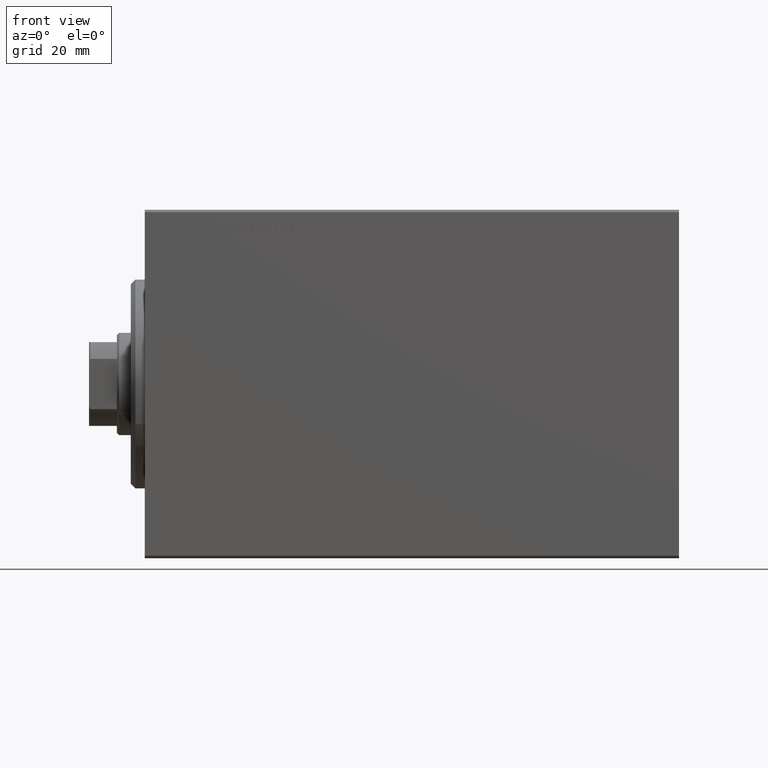
[diagram: clean part render]
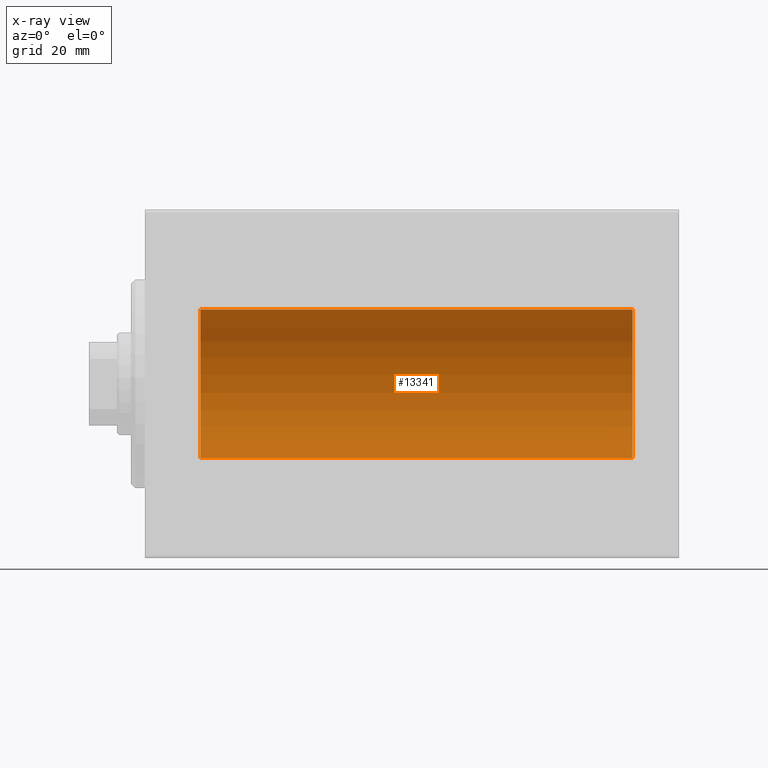
[diagram: x-ray — body ghosted, one internal face saturated and labeled with its STEP entity id]
A machine part, front view, then the same camera in x-ray: the body is ghosted and one INTERNAL B-rep face — a face not visible from any outside direction — is saturated and labeled: STEP entity #13341.
In plain terms, the highlighted cylindrical surface (partial cylindrical patch) has radius 16 mm, axis along (-1, -0, -0).
Its self-contained STEP definition (entity closure, byte-faithful):
#66 = DIRECTION ( 'NONE',  ( -1.000000000000000000, 0.000000000000000000, 0.000000000000000000 ) ) ;
#3454 = LINE ( 'NONE', #40459, #40247 ) ;
#6617 = EDGE_CURVE ( 'NONE', #12647, #35058, #3454, .T. ) ;
#7483 = EDGE_CURVE ( 'NONE', #35058, #16215, #17747, .T. ) ;
#7794 = CARTESIAN_POINT ( 'NONE',  ( 105.0000000000000000, 0.000000000000000000, 0.000000000000000000 ) ) ;
#8445 = DIRECTION ( 'NONE',  ( -1.000000000000000000, 0.000000000000000000, 0.000000000000000000 ) ) ;
#8475 = ORIENTED_EDGE ( 'NONE', *, *, #29635, .F. ) ;
#9926 = DIRECTION ( 'NONE',  ( 0.000000000000000000, 0.000000000000000000, 1.000000000000000000 ) ) ;
#12585 = FACE_OUTER_BOUND ( 'NONE', #42818, .T. ) ;
#12647 = VERTEX_POINT ( 'NONE', #25308 ) ;
#13341 = ADVANCED_FACE ( 'NONE', ( #12585 ), #26658, .F. ) ;
#13732 = CIRCLE ( 'NONE', #16548, 16.00000000000000000 ) ;
#13777 = LINE ( 'NONE', #36886, #29065 ) ;
#14929 = AXIS2_PLACEMENT_3D ( 'NONE', #20347, #66, #39950 ) ;
#15188 = CARTESIAN_POINT ( 'NONE',  ( 11.99999999999999645, 1.959434878635765131E-15, -16.00000000000000000 ) ) ;
#15670 = ORIENTED_EDGE ( 'NONE', *, *, #7483, .T. ) ;
#16215 = VERTEX_POINT ( 'NONE', #15188 ) ;
#16548 = AXIS2_PLACEMENT_3D ( 'NONE', #7794, #8445, #31566 ) ;
#17747 = CIRCLE ( 'NONE', #14929, 16.00000000000000000 ) ;
#19516 = DIRECTION ( 'NONE',  ( -1.000000000000000000, -0.000000000000000000, -0.000000000000000000 ) ) ;
#19546 = DIRECTION ( 'NONE',  ( -1.000000000000000000, -0.000000000000000000, -0.000000000000000000 ) ) ;
#20347 = CARTESIAN_POINT ( 'NONE',  ( 11.99999999999999645, 0.000000000000000000, 0.000000000000000000 ) ) ;
#22048 = ORIENTED_EDGE ( 'NONE', *, *, #6617, .T. ) ;
#25308 = CARTESIAN_POINT ( 'NONE',  ( 105.0000000000000000, 0.000000000000000000, 16.00000000000000000 ) ) ;
#26018 = DIRECTION ( 'NONE',  ( -1.000000000000000000, -0.000000000000000000, -0.000000000000000000 ) ) ;
#26658 = CYLINDRICAL_SURFACE ( 'NONE', #33682, 16.00000000000000000 ) ;
#29065 = VECTOR ( 'NONE', #19516, 1000.000000000000000 ) ;
#29527 = CARTESIAN_POINT ( 'NONE',  ( 105.0000000000000000, 0.000000000000000000, 0.000000000000000000 ) ) ;
#29635 = EDGE_CURVE ( 'NONE', #43251, #16215, #13777, .T. ) ;
#31566 = DIRECTION ( 'NONE',  ( 0.000000000000000000, 0.000000000000000000, 1.000000000000000000 ) ) ;
#33682 = AXIS2_PLACEMENT_3D ( 'NONE', #29527, #26018, #9926 ) ;
#33997 = CARTESIAN_POINT ( 'NONE',  ( 11.99999999999999645, 0.000000000000000000, 16.00000000000000000 ) ) ;
#35058 = VERTEX_POINT ( 'NONE', #33997 ) ;
#35355 = EDGE_CURVE ( 'NONE', #12647, #43251, #13732, .T. ) ;
#36886 = CARTESIAN_POINT ( 'NONE',  ( 105.0000000000000000, 1.959434878635765131E-15, -16.00000000000000000 ) ) ;
#39512 = CARTESIAN_POINT ( 'NONE',  ( 105.0000000000000000, 1.959434878635765131E-15, -16.00000000000000000 ) ) ;
#39950 = DIRECTION ( 'NONE',  ( 0.000000000000000000, 0.000000000000000000, 1.000000000000000000 ) ) ;
#40247 = VECTOR ( 'NONE', #19546, 1000.000000000000000 ) ;
#40459 = CARTESIAN_POINT ( 'NONE',  ( 105.0000000000000000, 0.000000000000000000, 16.00000000000000000 ) ) ;
#41939 = ORIENTED_EDGE ( 'NONE', *, *, #35355, .F. ) ;
#42818 = EDGE_LOOP ( 'NONE', ( #8475, #41939, #22048, #15670 ) ) ;
#43251 = VERTEX_POINT ( 'NONE', #39512 ) ;